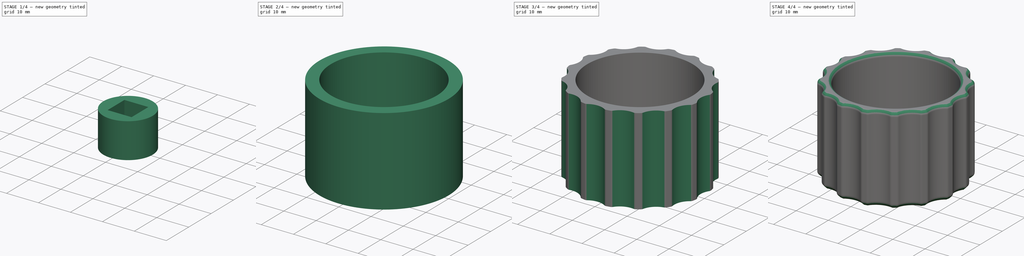
[diagram: build sequence overview — one tinted view per stage of 4, left to right]
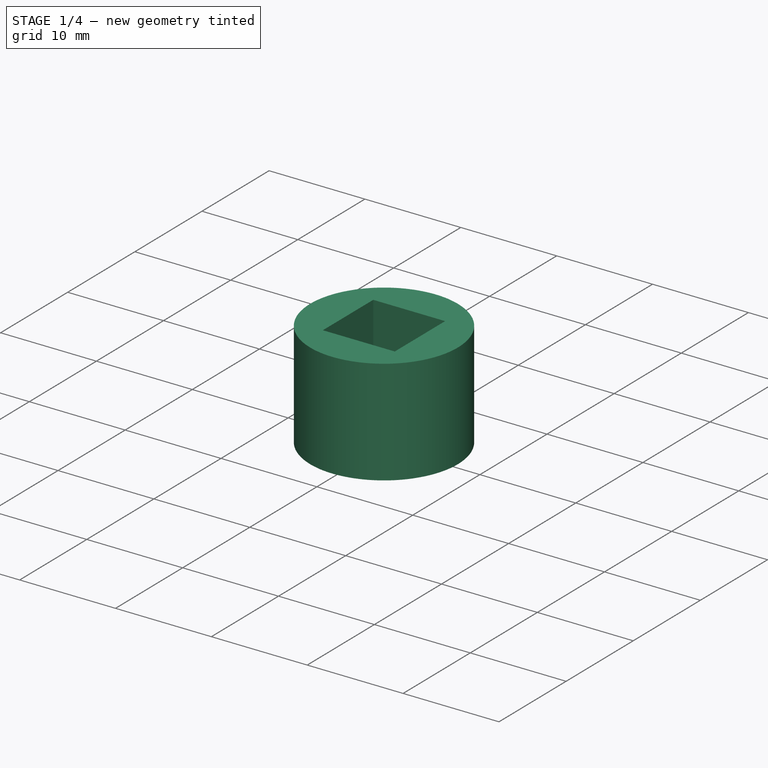
[diagram: stage 1 of 4 — iso view after this stage's code; geometry added in this stage tinted green]
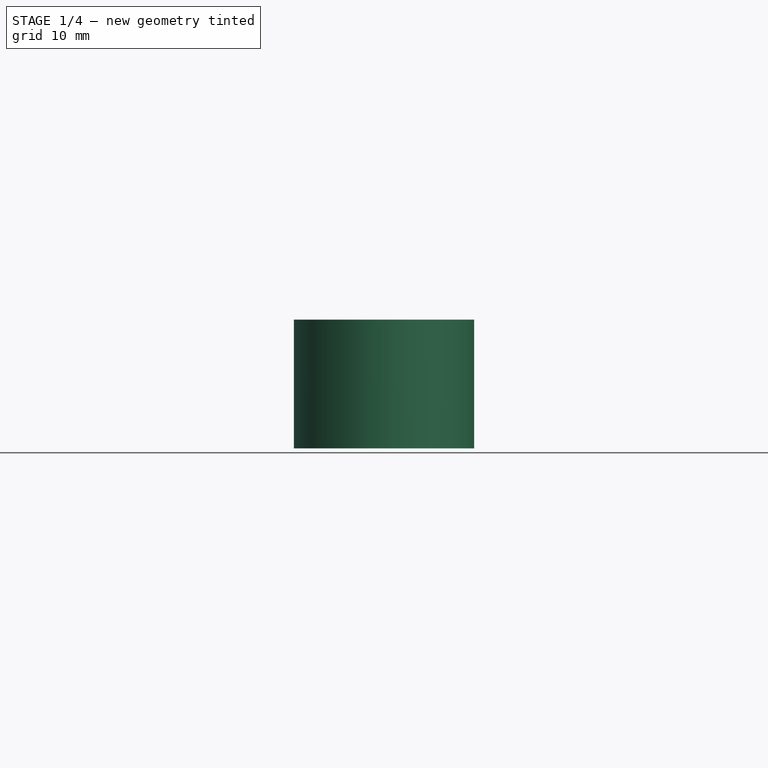
[diagram: stage 1 of 4 — front view after this stage's code; geometry added in this stage tinted green]
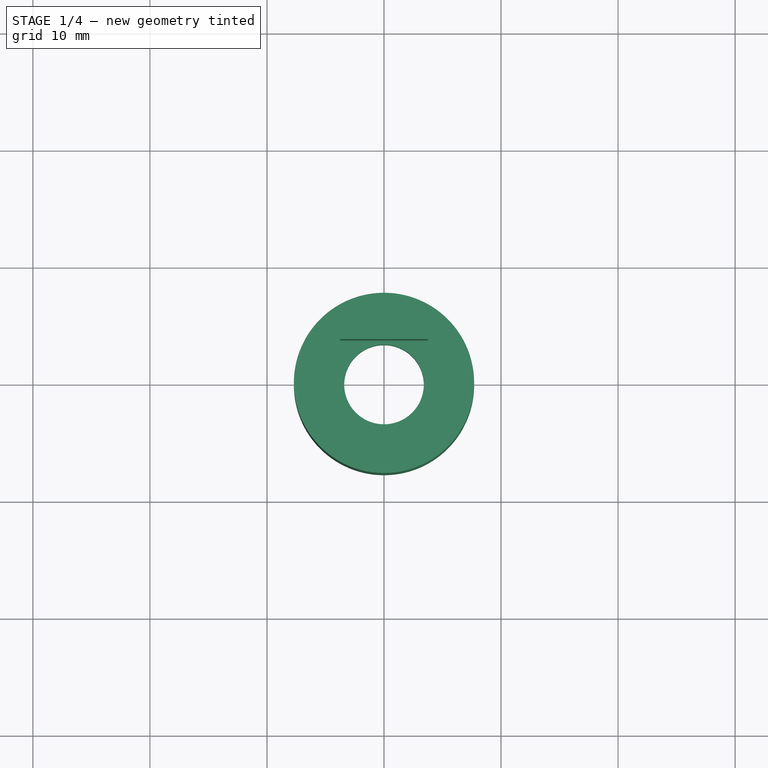
[diagram: stage 1 of 4 — top view after this stage's code; geometry added in this stage tinted green]
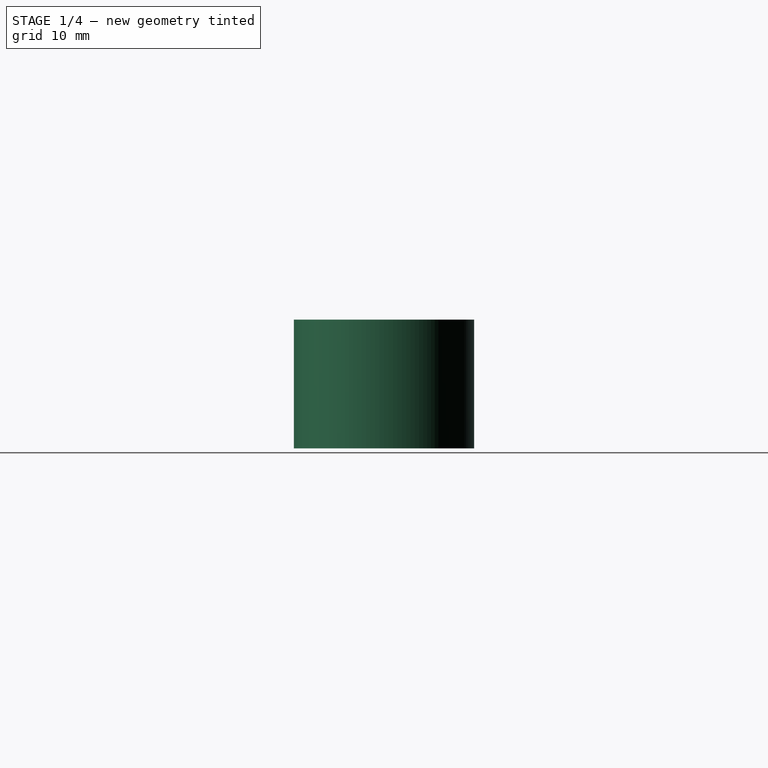
[diagram: stage 1 of 4 — right view after this stage's code; geometry added in this stage tinted green]
FCSTD DOCUMENT  (FreeCAD 0.18.4R)
Label: RadiatorKnob
License: All rights reserved
LicenseURL: http://en.wikipedia.org/wiki/All_rights_reserved
objects: Sketcher::SketchObject×7, PartDesign::Pad×5, PartDesign::Fillet×2, PartDesign::Body×2, PartDesign::Pocket×1, PartDesign::PolarPattern×1, PartDesign::Chamfer×1, PartDesign::ShapeBinder×1
note: 26 computed .brp shape members not serialized (recipe doc carries the construction recipe); baked Part::Feature solids carry a one-line shape summary decoded from their .brp

FEATURE [PartDesign::Body] Body
  Group = -> [Sketch,Sketch001,Pad,Sketch002,Pad001,Sketch003,Pad002,Sketch004,Pocket,PolarPattern,Fillet,Chamfer,Fillet001]
  Origin = -> Origin
  Tip = -> Fillet001
FEATURE [PartDesign::ShapeBinder] ShapeBinder
  Support = -> [Sketch]
  TraceSupport = false
FEATURE [Sketcher::SketchObject] Sketch005
  ExternalGeometry = -> [ShapeBinder]
  MapMode = 5
  Support = -> [XY_Plane001]
  sketch-geometry (2):
    g0: Circle CenterX=0 CenterY=0 CenterZ=0 NormalX=0 NormalY=0 NormalZ=1 AngleXU=0 Radius=7.7033
    g1: Circle CenterX=0 CenterY=0 CenterZ=0 NormalX=0 NormalY=0 NormalZ=1 AngleXU=0 Radius=3.4
  constraints (4):
    c: Coincident(g0,g-1)
    c: Coincident(g1,g0)
    c: Equal(g1,g-4)
    c: Equal(g0,g-3)
FEATURE [PartDesign::Pad] Pad003
  Length = 3
  Length2 = 100
  Profile = -> Sketch005
  Type = 0
FEATURE [Sketcher::SketchObject] Sketch006
  AttachmentOffset = pos=(0,0,3) rot=(0,0,1;0rad)
  ExternalGeometry = -> [ShapeBinder]
  MapMode = 5
  Placement = pos=(0,0,3) rot=(0,0,1;0rad)
  Support = -> [XY_Plane001]
  expr: AttachmentOffset.Base.z = Sketch005.Placement.Base.z + Pad003.Length
  sketch-geometry (5):
    g0: Circle CenterX=0 CenterY=0 CenterZ=0 NormalX=0 NormalY=0 NormalZ=1 AngleXU=0 Radius=7.7033
    g1: LineSegment StartX=-3.75 StartY=3.75 StartZ=0 EndX=3.75 EndY=3.75 EndZ=0
    g2: LineSegment StartX=3.75 StartY=3.75 StartZ=0 EndX=3.75 EndY=-3.75 EndZ=0
    g3: LineSegment StartX=3.75 StartY=-3.75 StartZ=0 EndX=-3.75 EndY=-3.75 EndZ=0
    g4: LineSegment StartX=-3.75 StartY=-3.75 StartZ=0 EndX=-3.75 EndY=3.75 EndZ=0
  constraints (10):
    c: Coincident(g0,g-1)
    c: Equal(g0,g-3)
    c: Coincident(g1,g2)
    c: Coincident(g2,g3)
    c: Coincident(g3,g4)
    c: Coincident(g4,g1)
    c: Coincident(g1,g-4)
    c: Coincident(g2,g-5)
    c: Coincident(g1,g-4)
    c: Coincident(g3,g-5)
FEATURE [PartDesign::Pad] Pad004
  BaseFeature = -> Pad003
  Length = 8
  Length2 = 100
  Profile = -> Sketch006
  Refine = true
  Type = 0
FEATURE [PartDesign::Body] Body001
  Group = -> [ShapeBinder,Sketch005,Pad003,Sketch006,Pad004]
  Origin = -> Origin001
  Tip = -> Pad004
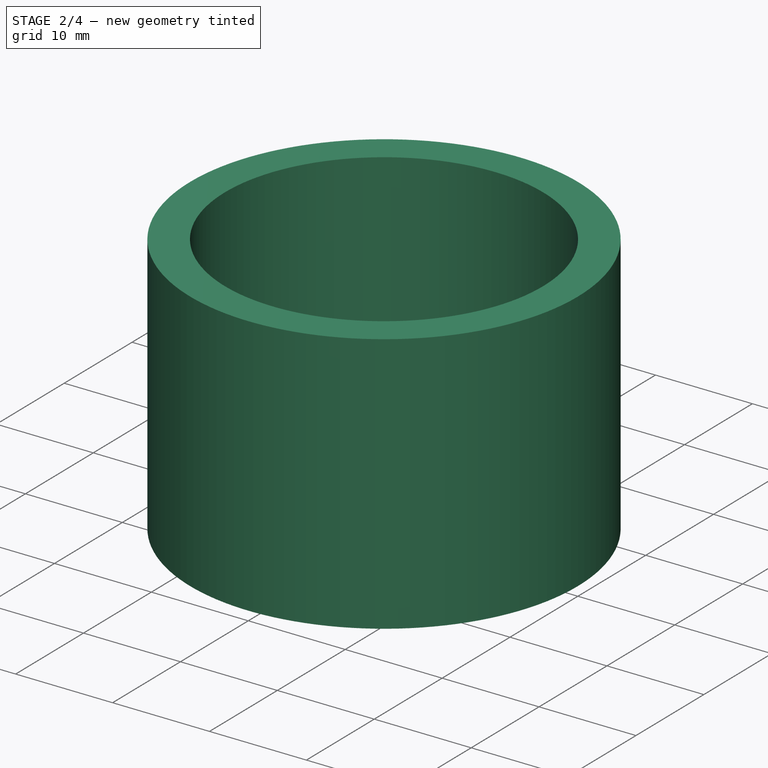
[diagram: stage 2 of 4 — iso view after this stage's code; geometry added in this stage tinted green]
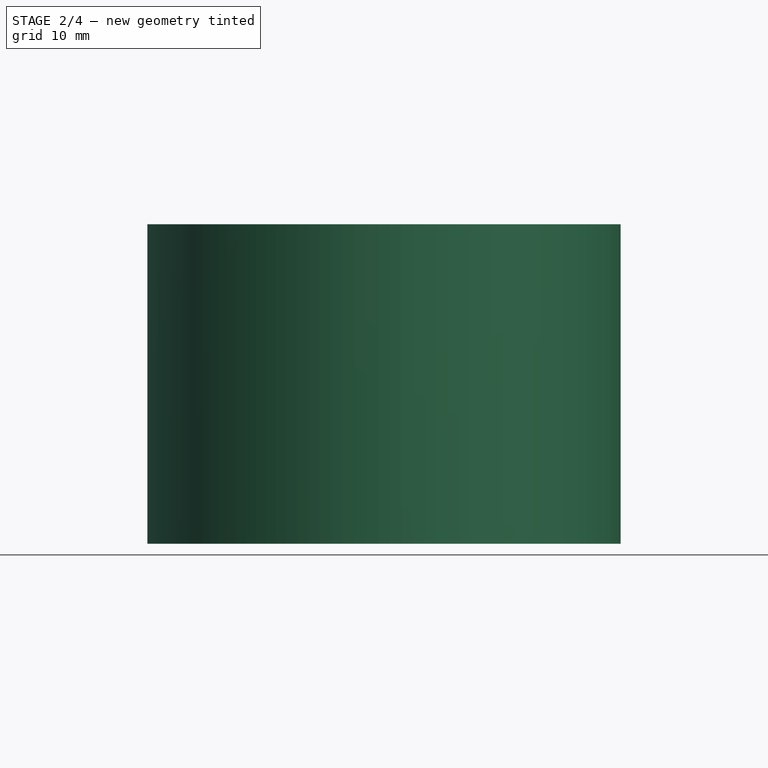
[diagram: stage 2 of 4 — front view after this stage's code; geometry added in this stage tinted green]
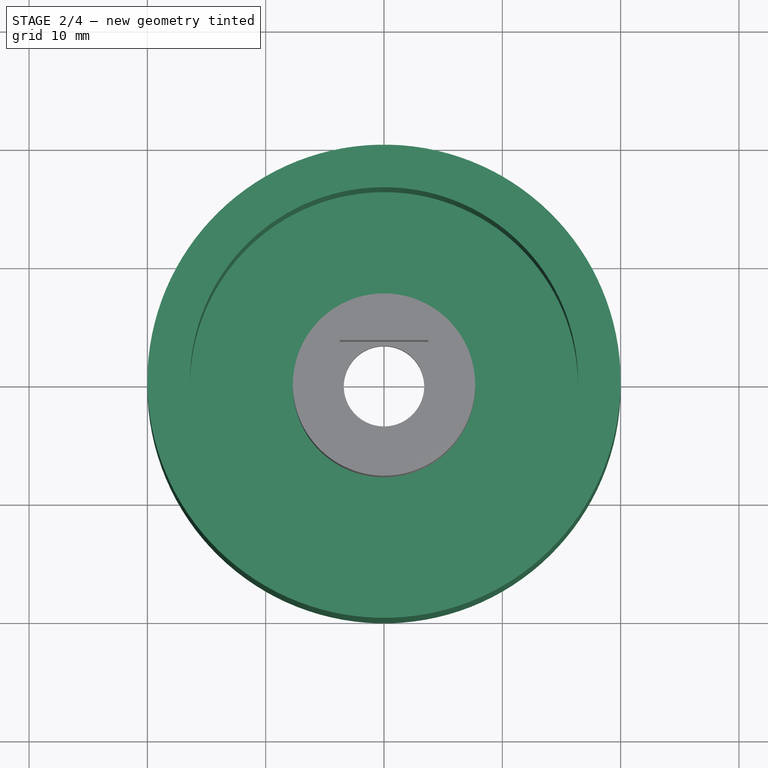
[diagram: stage 2 of 4 — top view after this stage's code; geometry added in this stage tinted green]
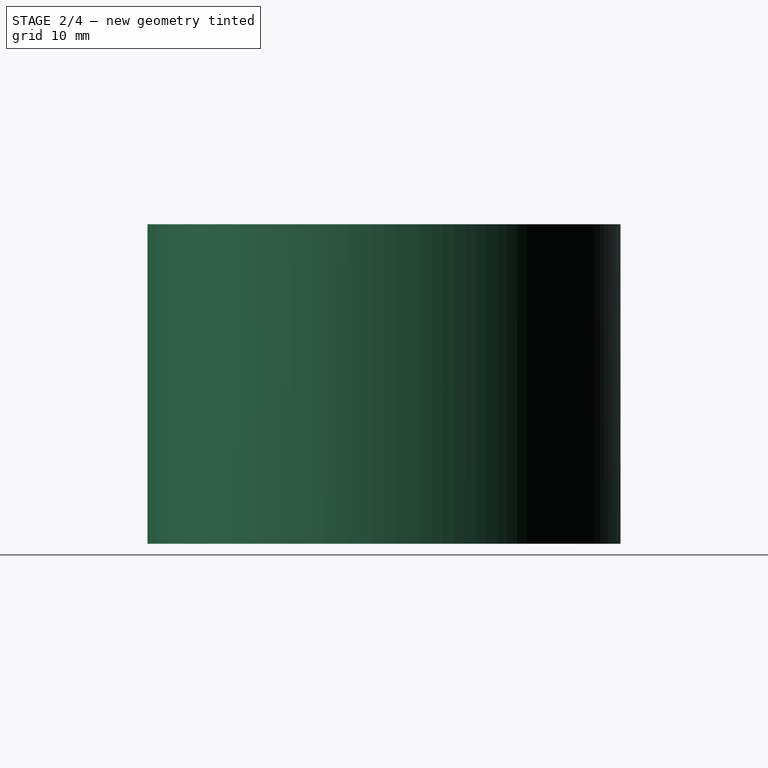
[diagram: stage 2 of 4 — right view after this stage's code; geometry added in this stage tinted green]
FEATURE [Sketcher::SketchObject] Sketch
  MapMode = 5
  Support = -> [XY_Plane]
  expr: Constraints.Rx = Constraints.Ro / 20
  expr: Constraints.Re = Constraints.Ro / 4
  sketch-geometry (17):
    g0: LineSegment StartX=-3.75 StartY=3.75 StartZ=0 EndX=3.75 EndY=3.75 EndZ=0
    g1: LineSegment StartX=3.75 StartY=3.75 StartZ=0 EndX=3.75 EndY=-3.75 EndZ=0
    g2: LineSegment StartX=3.75 StartY=-3.75 StartZ=0 EndX=-3.75 EndY=-3.75 EndZ=0
    g3: LineSegment StartX=-3.75 StartY=-3.75 StartZ=0 EndX=-3.75 EndY=3.75 EndZ=0
    g4: Circle CenterX=0 CenterY=0 CenterZ=0 NormalX=0 NormalY=0 NormalZ=1 AngleXU=0 Radius=3.4
    g5: Circle CenterX=0 CenterY=0 CenterZ=0 NormalX=0 NormalY=0 NormalZ=1 AngleXU=0 Radius=20
    g6: GeomPoint X=0 Y=20 Z=0
    g7: ArcOfCircle CenterX=2e-16 CenterY=23.8 CenterZ=0 NormalX=0 NormalY=0 NormalZ=1 AngleXU=0 Radius=5 StartAngle=4.14887 EndAngle=5.27591
    g8: ArcOfCircle CenterX=-3.20501 CenterY=18.7277 CenterZ=0 NormalX=0 NormalY=0 NormalZ=1 AngleXU=0 Radius=1 StartAngle=1.00727 EndAngle=1.74029
    g9: ArcOfCircle CenterX=3.20501 CenterY=18.7277 CenterZ=0 NormalX=0 NormalY=0 NormalZ=1 AngleXU=0 Radius=1 StartAngle=1.40131 EndAngle=2.13432
    g10: Circle CenterX=0 CenterY=0 CenterZ=0 NormalX=0 NormalY=0 NormalZ=1 AngleXU=0 Radius=7.7033
    g11: Circle CenterX=0 CenterY=0 CenterZ=0 NormalX=0 NormalY=0 NormalZ=1 AngleXU=0 Radius=16.4
    g12: GeomPoint X=0 Y=18.8 Z=0
    g13: GeomPoint X=0 Y=16.4 Z=0
    g14: LineSegment [constr] StartX=0 StartY=0 StartZ=0 EndX=5.44706 EndY=5.44706 EndZ=0
    g15: LineSegment [constr] StartX=2e-16 StartY=23.8 StartZ=0 EndX=3.20501 EndY=18.7277 EndZ=0
    g16: LineSegment [constr] StartX=2e-16 StartY=23.8 StartZ=0 EndX=-3.20501 EndY=18.7277 EndZ=0
  constraints (44):
    c: Coincident(g0,g1)
    c: Coincident(g1,g2)
    c: Coincident(g2,g3)
    c: Coincident(g3,g0)
    c: Horizontal(g0)
    c: Horizontal(g2)
    c: Vertical(g1)
    c: Vertical(g3)
    c: Equal(g0,g3)
    c: Symmetric(g2,g0,g-1)
    c: DistanceX(g0,g0) = 7.5
    c: Radius(g4) = 3.4
    c: Radius(g5) = 20  'Ro'
    c: PointOnObject(g6,g-2)
    c: PointOnObject(g6,g5)
    c: Radius(g7) = 5  'Re'
    c: Equal(g9,g8)
    c: Tangent(g7,g8) = 1.5708
    c: Radius(g8) = 1  'Rx'
    c: Coincident(g10,g4)
    c: Coincident(g11,g4)
    c: PointOnObject(g12,g7)
    c: PointOnObject(g13,g11)
    c: PointOnObject(g13,g-2)
    c: PointOnObject(g12,g-2)
    c: DistanceY(g13,g12) = 2.4  'EdgeMinThickness'
    c: DistanceY(g12,g6) = 1.2
    c: Coincident(g14,g4)
    c: PointOnObject(g14,g10)
    c: PointOnObject(g0,g14)
    c: Distance(g0,g14) = 2.4
    c: Coincident(g15,g7)
    c: Coincident(g15,g9)
    c: Coincident(g16,g7)
    c: Coincident(g16,g8)
    c: Coincident(g7,g9)
    c: PointOnObject(g7,g15)
    c: Symmetric(g8,g9,g-2)
    c: Tangent(g8,g5) = -1.5708
    c: Coincident(g5,g-1)
    c: PointOnObject(g9,g5)
    c: Coincident(g4,g5)
    c: Radius(g10) = 7.7033  'Rmi'
    c: Radius(g11) = 16.4  'Rmo'
FEATURE [Sketcher::SketchObject] Sketch001
  ExternalGeometry = -> [Sketch]
  MapMode = 5
  Support = -> [XY_Plane]
  sketch-geometry (2):
    g0: Circle CenterX=0 CenterY=0 CenterZ=0 NormalX=0 NormalY=0 NormalZ=1 AngleXU=0 Radius=3.4
    g1: Circle CenterX=0 CenterY=0 CenterZ=0 NormalX=0 NormalY=0 NormalZ=1 AngleXU=0 Radius=20
  constraints (4):
    c: Coincident(g0,g-1)
    c: Coincident(g1,g0)
    c: Equal(g1,g-3)
    c: Equal(g0,g-4)
FEATURE [PartDesign::Pad] Pad
  Length = 3
  Length2 = 100
  Profile = -> Sketch001
  Type = 0
FEATURE [Sketcher::SketchObject] Sketch002
  AttachmentOffset = pos=(0,0,3) rot=(0,0,1;0rad)
  ExternalGeometry = -> [Sketch]
  MapMode = 5
  Placement = pos=(0,0,3) rot=(0,0,1;0rad)
  Support = -> [XY_Plane]
  expr: AttachmentOffset.Base.z = Sketch001.Placement.Base.z + Pad.Length
  sketch-geometry (5):
    g0: LineSegment StartX=-3.75 StartY=3.75 StartZ=0 EndX=3.75 EndY=3.75 EndZ=0
    g1: LineSegment StartX=3.75 StartY=3.75 StartZ=0 EndX=3.75 EndY=-3.75 EndZ=0
    g2: LineSegment StartX=3.75 StartY=-3.75 StartZ=0 EndX=-3.75 EndY=-3.75 EndZ=0
    g3: LineSegment StartX=-3.75 StartY=-3.75 StartZ=0 EndX=-3.75 EndY=3.75 EndZ=0
    g4: Circle CenterX=0 CenterY=0 CenterZ=0 NormalX=0 NormalY=0 NormalZ=1 AngleXU=0 Radius=7.7033
  constraints (10):
    c: Coincident(g0,g1)
    c: Coincident(g1,g2)
    c: Coincident(g2,g3)
    c: Coincident(g3,g0)
    c: Coincident(g0,g-3)
    c: Coincident(g1,g-4)
    c: Coincident(g0,g-3)
    c: Coincident(g2,g-4)
    c: Coincident(g4,g-1)
    c: Equal(g4,g-5)
FEATURE [PartDesign::Pad] Pad001
  BaseFeature = -> Pad
  Length = 8
  Length2 = 100
  Profile = -> Sketch002
  Type = 0
FEATURE [Sketcher::SketchObject] Sketch003
  AttachmentOffset = pos=(0,0,3) rot=(0,0,1;0rad)
  ExternalGeometry = -> [Sketch]
  MapMode = 5
  Placement = pos=(0,0,3) rot=(0,0,1;0rad)
  Support = -> [XY_Plane]
  expr: AttachmentOffset.Base.z = Sketch002.Placement.Base.z
  sketch-geometry (2):
    g0: Circle CenterX=0 CenterY=0 CenterZ=0 NormalX=0 NormalY=0 NormalZ=1 AngleXU=0 Radius=16.4
    g1: Circle CenterX=0 CenterY=0 CenterZ=0 NormalX=0 NormalY=0 NormalZ=1 AngleXU=0 Radius=20
  constraints (4):
    c: Coincident(g0,g-1)
    c: Coincident(g1,g0)
    c: Equal(g1,g-3)
    c: Equal(g-4,g0)
FEATURE [PartDesign::Pad] Pad002
  BaseFeature = -> Pad001
  Length = 24
  Length2 = 100
  Profile = -> Sketch003
  Refine = true
  Type = 0
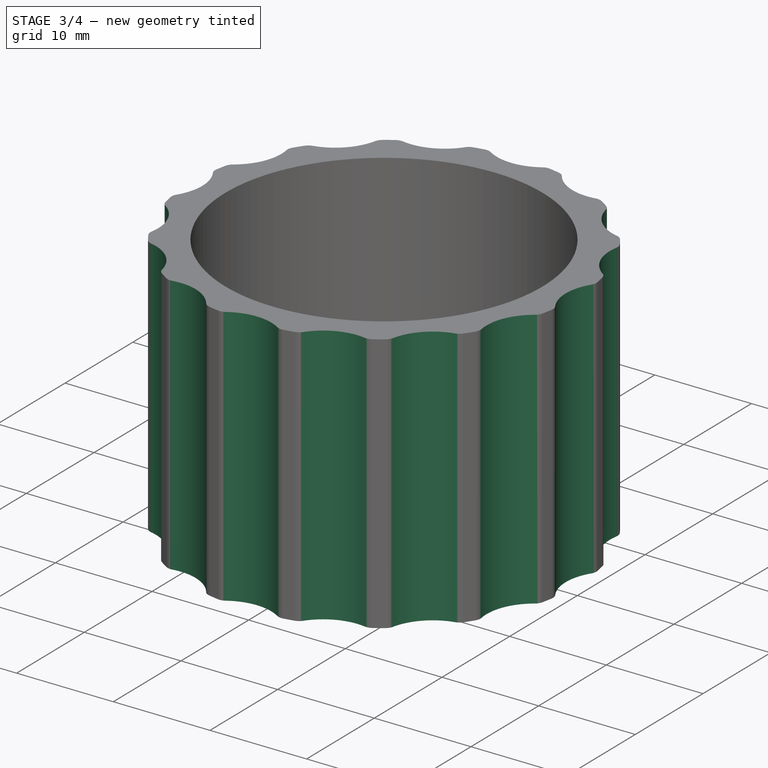
[diagram: stage 3 of 4 — iso view after this stage's code; geometry added in this stage tinted green]
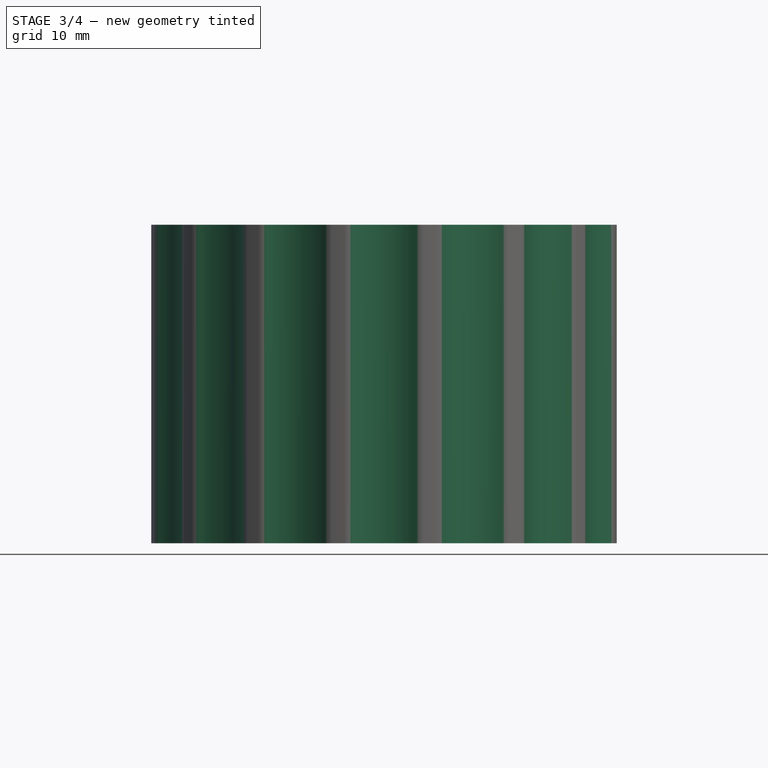
[diagram: stage 3 of 4 — front view after this stage's code; geometry added in this stage tinted green]
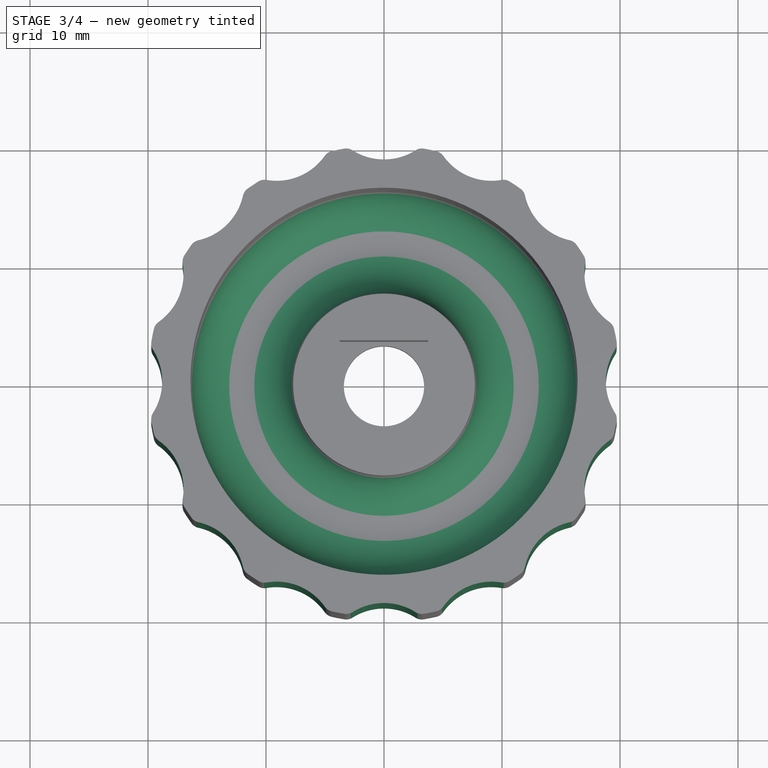
[diagram: stage 3 of 4 — top view after this stage's code; geometry added in this stage tinted green]
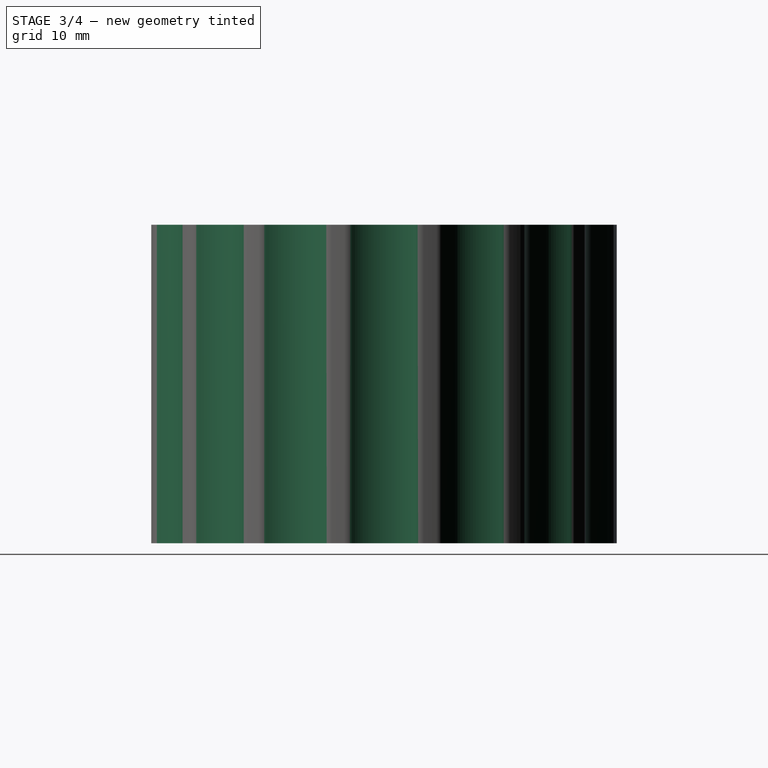
[diagram: stage 3 of 4 — right view after this stage's code; geometry added in this stage tinted green]
FEATURE [Sketcher::SketchObject] Sketch004
  ExternalGeometry = -> [Sketch]
  MapMode = 5
  Support = -> [XY_Plane]
  sketch-geometry (4):
    g0: ArcOfCircle CenterX=0 CenterY=0 CenterZ=0 NormalX=0 NormalY=0 NormalZ=1 AngleXU=0 Radius=20 StartAngle=1.4013 EndAngle=1.74029
    g1: ArcOfCircle CenterX=2e-16 CenterY=23.8 CenterZ=0 NormalX=0 NormalY=0 NormalZ=1 AngleXU=0 Radius=5 StartAngle=4.14887 EndAngle=5.27591
    g2: ArcOfCircle CenterX=-3.20501 CenterY=18.7277 CenterZ=0 NormalX=0 NormalY=0 NormalZ=1 AngleXU=0 Radius=1 StartAngle=1.00727 EndAngle=1.74029
    g3: ArcOfCircle CenterX=3.20501 CenterY=18.7277 CenterZ=0 NormalX=0 NormalY=0 NormalZ=1 AngleXU=0 Radius=1 StartAngle=1.40131 EndAngle=2.13432
  constraints (12):
    c: Coincident(g0,g-1)
    c: Coincident(g0,g-4)
    c: Coincident(g0,g-5)
    c: Coincident(g1,g-3)
    c: Coincident(g1,g-4)
    c: Coincident(g1,g-5)
    c: Coincident(g2,g-4)
    c: Coincident(g2,g0)
    c: Coincident(g2,g1)
    c: Coincident(g3,g-5)
    c: Coincident(g3,g1)
    c: Coincident(g3,g0)
FEATURE [PartDesign::Pocket] Pocket
  BaseFeature = -> Pad002
  Length = 5
  Length2 = 100
  Midplane = true
  Profile = -> Sketch004
  Type = 1
FEATURE [PartDesign::PolarPattern] PolarPattern
  Angle = 360
  Axis = -> Sketch004 [N_Axis]
  BaseFeature = -> Pocket
  Occurrences = 16
  Originals = -> [Pocket]
FEATURE [PartDesign::Fillet] Fillet
  Base = -> PolarPattern [Edge197,Edge195]
  BaseFeature = -> PolarPattern
  Radius = 4.33835
  expr: Radius = (Sketch.Constraints.Rmo - Sketch.Constraints.Rmi) / 2 - 0.01mm
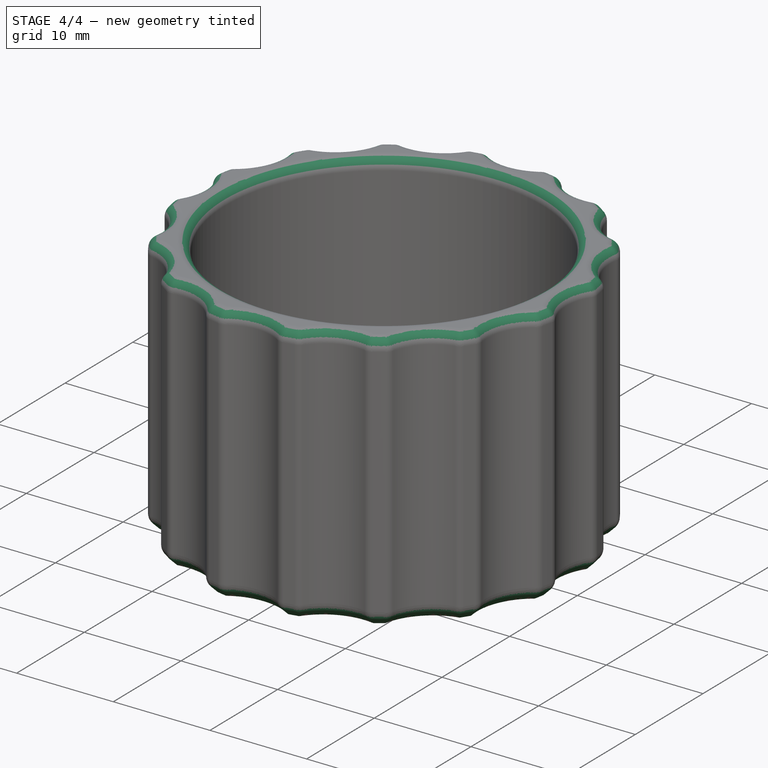
[diagram: stage 4 of 4 — iso view after this stage's code; geometry added in this stage tinted green]
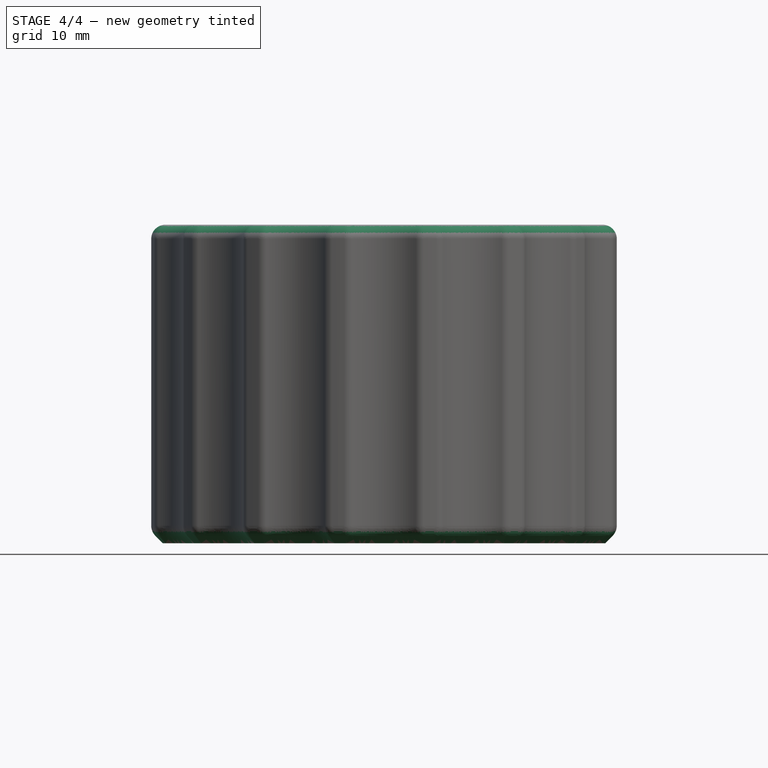
[diagram: stage 4 of 4 — front view after this stage's code; geometry added in this stage tinted green]
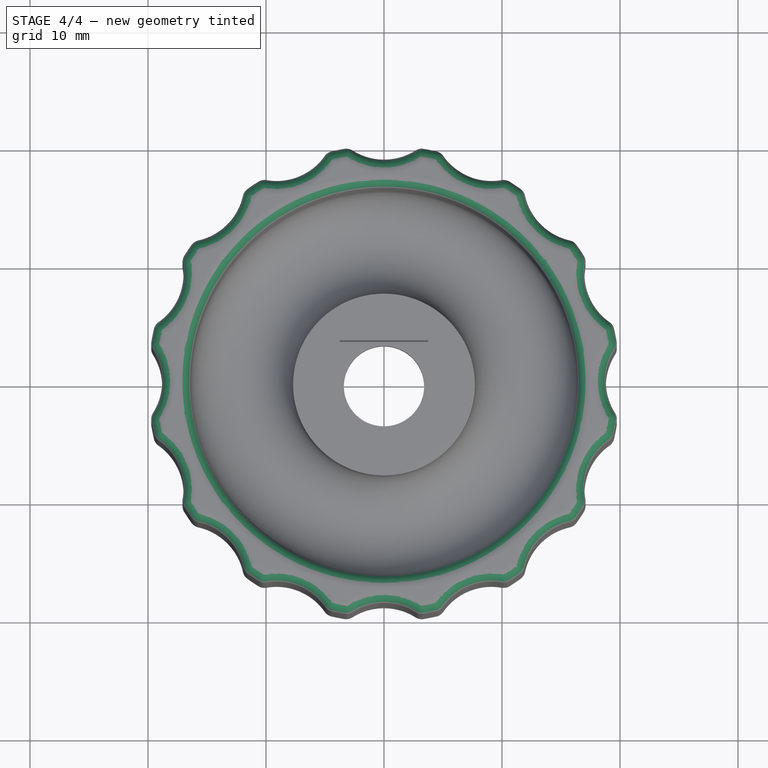
[diagram: stage 4 of 4 — top view after this stage's code; geometry added in this stage tinted green]
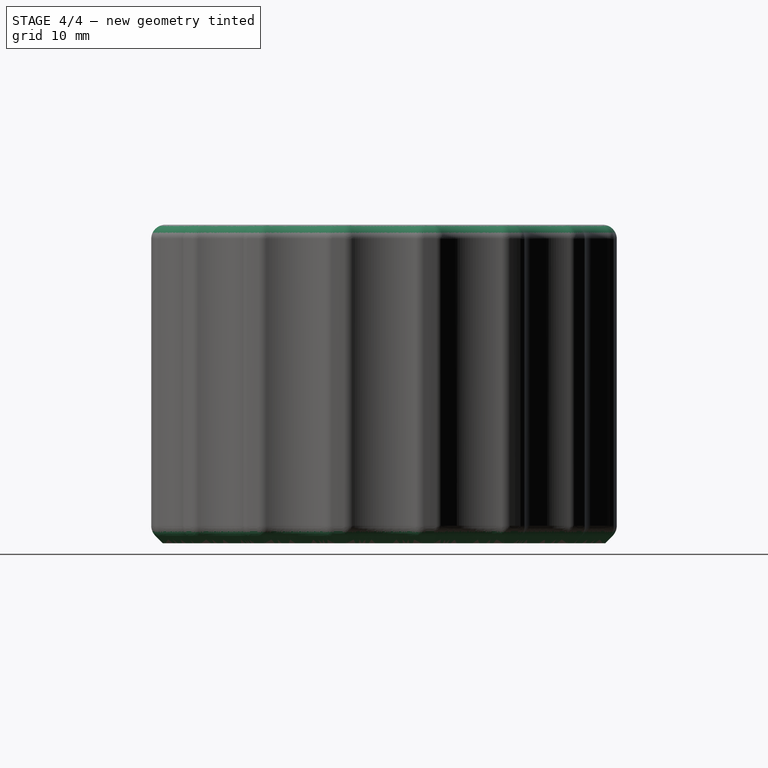
[diagram: stage 4 of 4 — right view after this stage's code; geometry added in this stage tinted green]
FEATURE [PartDesign::Chamfer] Chamfer
  Base = -> Fillet [Edge89]
  BaseFeature = -> Fillet
  Size = 0.99
  expr: Size = Sketch.Constraints.Rx - 0.01mm
FEATURE [PartDesign::Fillet] Fillet001
  Base = -> Chamfer [Edge25,Edge171,Edge344,Edge73]
  BaseFeature = -> Chamfer
  Radius = 1.19
  expr: Radius = Sketch.Constraints.EdgeMinThickness / 2 - 0.01mm
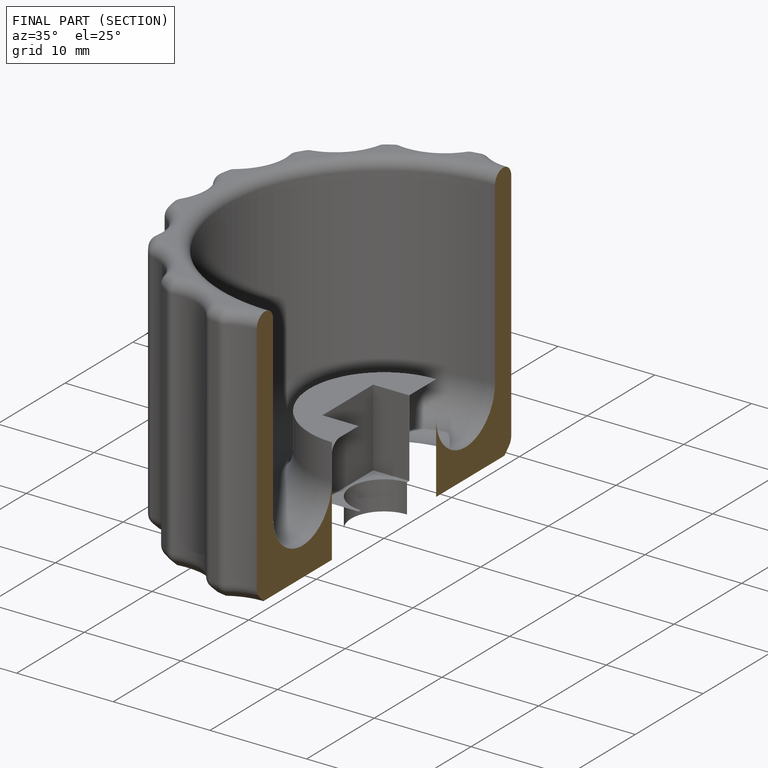
[diagram: finished part — half-section view (interior)]
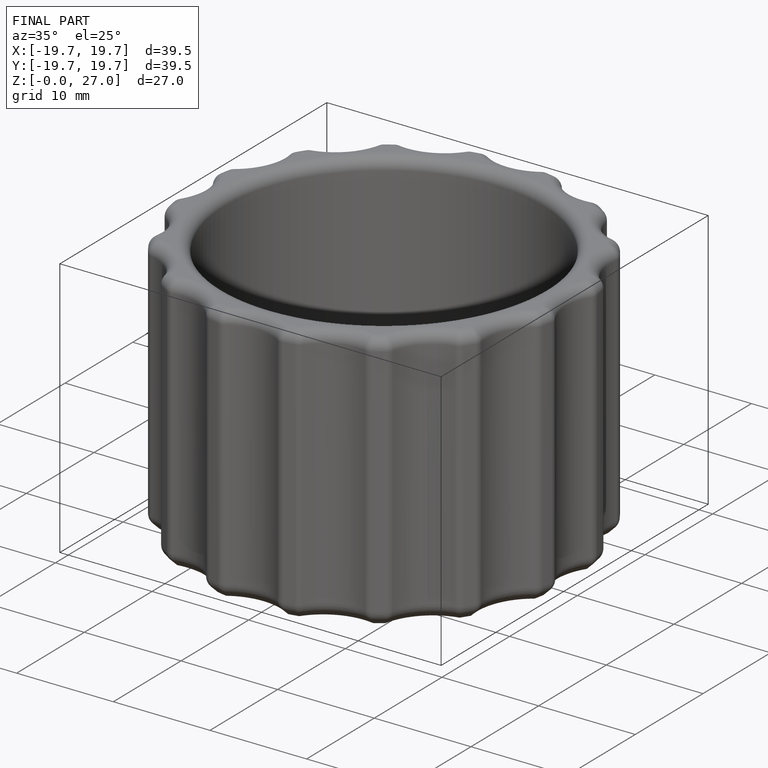
[diagram: finished part — iso view with bounding-box wireframe]
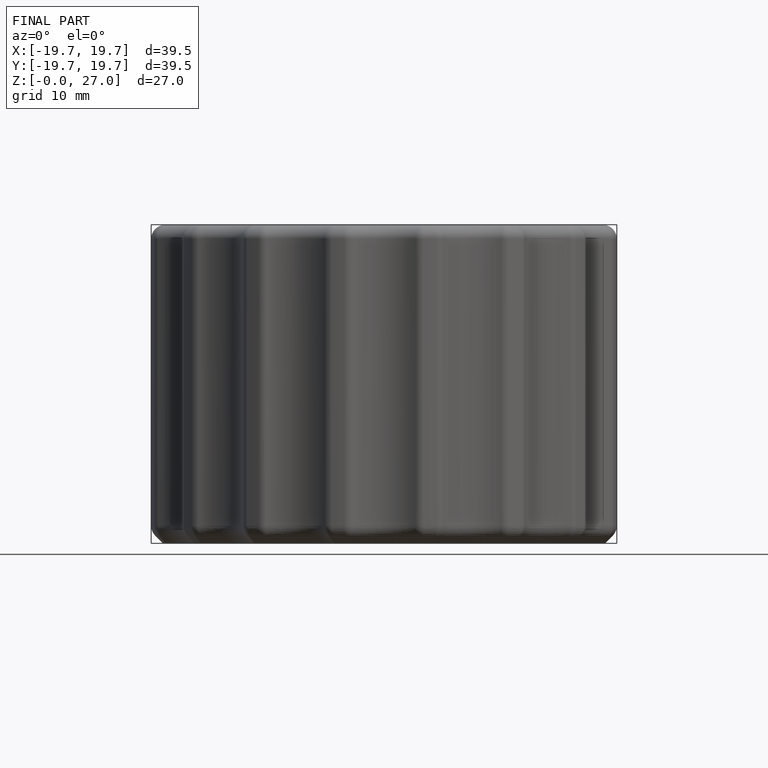
[diagram: finished part — front view with bounding-box wireframe]
